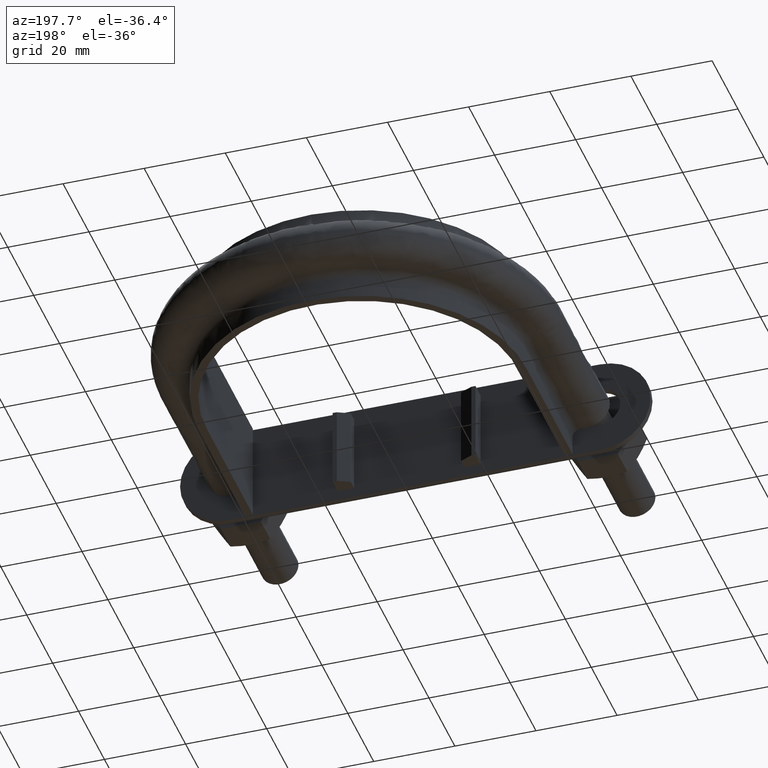
[diagram: clean part render]
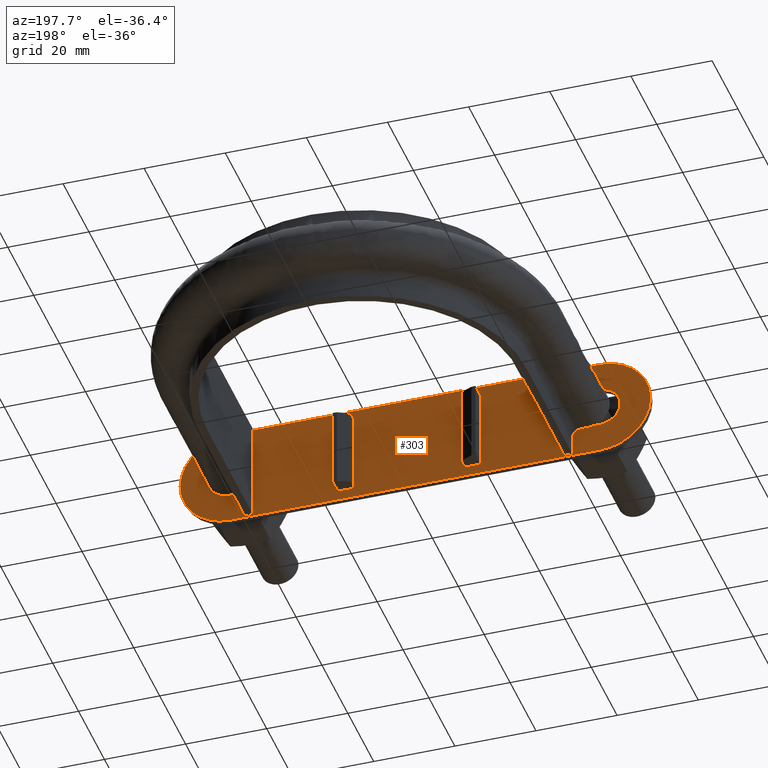
[diagram: same view with one face highlighted and labeled with its STEP entity id]
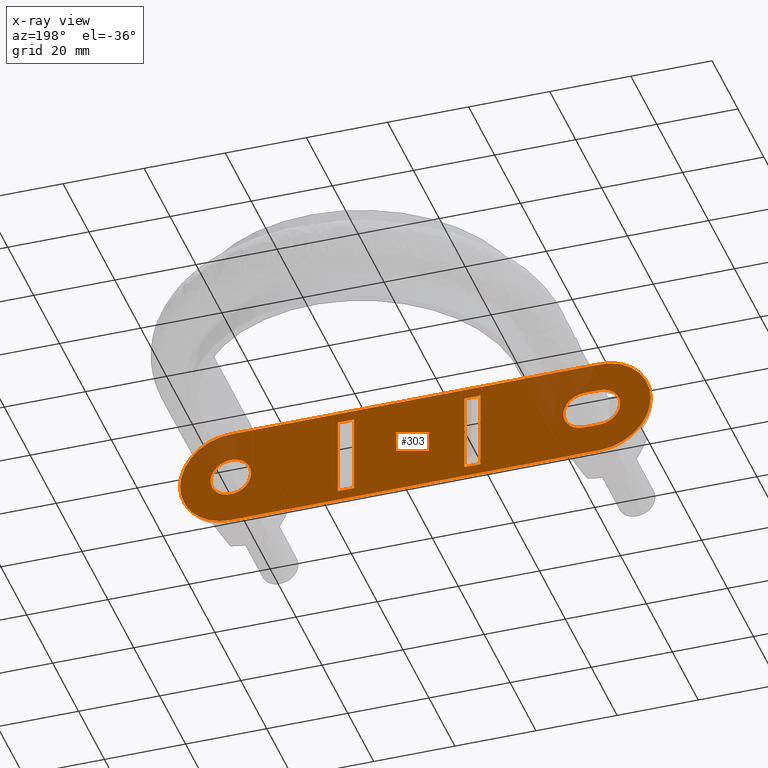
[diagram: x-ray of the same camera — body ghosted, the highlighted face saturated]
A machine part, auxiliary view. The second image highlights one B-rep face of the part: STEP entity #303.
The next image is the same camera in x-ray: the body ghosted, the highlighted face saturated — about 8% of this face is hidden behind the body in this view.
In plain terms, the highlighted planar face has unit normal (-0, 1, 0).
Its self-contained STEP definition (entity closure, byte-faithful):
#303 = ADVANCED_FACE( '', ( #467, #468, #469, #470, #471 ), #472, .T. );
#467 = FACE_BOUND( '', #1549, .T. );
#468 = FACE_BOUND( '', #1550, .T. );
#469 = FACE_BOUND( '', #1551, .T. );
#470 = FACE_OUTER_BOUND( '', #1552, .T. );
#471 = FACE_BOUND( '', #1553, .T. );
#472 = PLANE( '', #1554 );
#1549 = EDGE_LOOP( '', ( #1969, #1970, #1971, #1972 ) );
#1550 = EDGE_LOOP( '', ( #1973, #1974, #1975, #1976 ) );
#1551 = EDGE_LOOP( '', ( #1977 ) );
#1552 = EDGE_LOOP( '', ( #1978, #1979, #1980, #1981, #1982, #1983 ) );
#1553 = EDGE_LOOP( '', ( #1984, #1985, #1986, #1987 ) );
#1554 = AXIS2_PLACEMENT_3D( '', #1988, #1989, #1990 );
#1969 = ORIENTED_EDGE( '', *, *, #2625, .F. );
#1970 = ORIENTED_EDGE( '', *, *, #2626, .T. );
#1971 = ORIENTED_EDGE( '', *, *, #2627, .T. );
#1972 = ORIENTED_EDGE( '', *, *, #2628, .F. );
#1973 = ORIENTED_EDGE( '', *, *, #2629, .F. );
#1974 = ORIENTED_EDGE( '', *, *, #2622, .F. );
#1975 = ORIENTED_EDGE( '', *, *, #2630, .F. );
#1976 = ORIENTED_EDGE( '', *, *, #2631, .F. );
#1977 = ORIENTED_EDGE( '', *, *, #2632, .F. );
#1978 = ORIENTED_EDGE( '', *, *, #2612, .T. );
#1979 = ORIENTED_EDGE( '', *, *, #2633, .T. );
#1980 = ORIENTED_EDGE( '', *, *, #2634, .T. );
#1981 = ORIENTED_EDGE( '', *, *, #2635, .T. );
#1982 = ORIENTED_EDGE( '', *, *, #2636, .T. );
#1983 = ORIENTED_EDGE( '', *, *, #2637, .T. );
#1984 = ORIENTED_EDGE( '', *, *, #2638, .F. );
#1985 = ORIENTED_EDGE( '', *, *, #2639, .T. );
#1986 = ORIENTED_EDGE( '', *, *, #2640, .T. );
#1987 = ORIENTED_EDGE( '', *, *, #2641, .F. );
#1988 = CARTESIAN_POINT( '', ( -46.9999999999999, 37.8999999191478, 5.76473164547631E-014 ) );
#1989 = DIRECTION( '', ( -1.72026053130029E-009, 1.00000000000000, 2.28351284177706E-016 ) );
#1990 = DIRECTION( '', ( 2.52274493421808E-016, -2.28351283743728E-016, 1.00000000000000 ) );
#2612 = EDGE_CURVE( '', #2901, #2902, #2903, .T. );
#2622 = EDGE_CURVE( '', #2917, #2918, #2919, .T. );
#2625 = EDGE_CURVE( '', #2922, #2923, #2924, .T. );
#2626 = EDGE_CURVE( '', #2922, #2925, #2926, .T. );
#2627 = EDGE_CURVE( '', #2925, #2927, #2928, .T. );
#2628 = EDGE_CURVE( '', #2923, #2927, #2929, .T. );
#2629 = EDGE_CURVE( '', #2918, #2930, #2931, .F. );
#2630 = EDGE_CURVE( '', #2932, #2917, #2933, .F. );
#2631 = EDGE_CURVE( '', #2930, #2932, #2934, .T. );
#2632 = EDGE_CURVE( '', #2935, #2935, #2936, .T. );
#2633 = EDGE_CURVE( '', #2902, #2937, #2938, .T. );
#2634 = EDGE_CURVE( '', #2937, #2939, #2940, .T. );
#2635 = EDGE_CURVE( '', #2939, #2941, #2942, .T. );
#2636 = EDGE_CURVE( '', #2941, #2943, #2944, .T. );
#2637 = EDGE_CURVE( '', #2943, #2901, #2945, .T. );
#2638 = EDGE_CURVE( '', #2946, #2947, #2948, .T. );
#2639 = EDGE_CURVE( '', #2946, #2949, #2950, .T. );
#2640 = EDGE_CURVE( '', #2949, #2951, #2952, .T. );
#2641 = EDGE_CURVE( '', #2947, #2951, #2953, .T. );
#2901 = VERTEX_POINT( '', #3566 );
#2902 = VERTEX_POINT( '', #3567 );
#2903 = CIRCLE( '', #3568, 12.5000000000000 );
#2917 = VERTEX_POINT( '', #3591 );
#2918 = VERTEX_POINT( '', #3592 );
#2919 = LINE( '', #3593, #3594 );
#2922 = VERTEX_POINT( '', #3599 );
#2923 = VERTEX_POINT( '', #3600 );
#2924 = LINE( '', #3601, #3602 );
#2925 = VERTEX_POINT( '', #3603 );
#2926 = LINE( '', #3604, #3605 );
#2927 = VERTEX_POINT( '', #3606 );
#2928 = LINE( '', #3607, #3608 );
#2929 = LINE( '', #3609, #3610 );
#2930 = VERTEX_POINT( '', #3611 );
#2931 = CIRCLE( '', #3612, 4.99999999999999 );
#2932 = VERTEX_POINT( '', #3613 );
#2933 = CIRCLE( '', #3614, 4.99999999999999 );
#2934 = LINE( '', #3615, #3616 );
#2935 = VERTEX_POINT( '', #3617 );
#2936 = CIRCLE( '', #3618, 4.99999999999998 );
#2937 = VERTEX_POINT( '', #3619 );
#2938 = LINE( '', #3620, #3621 );
#2939 = VERTEX_POINT( '', #3622 );
#2940 = CIRCLE( '', #3623, 12.4999999999996 );
#2941 = VERTEX_POINT( '', #3624 );
#2942 = CIRCLE( '', #3625, 12.5000000000000 );
#2943 = VERTEX_POINT( '', #3626 );
#2944 = LINE( '', #3627, #3628 );
#2945 = CIRCLE( '', #3629, 12.4999999999996 );
#2946 = VERTEX_POINT( '', #3630 );
#2947 = VERTEX_POINT( '', #3631 );
#2948 = LINE( '', #3632, #3633 );
#2949 = VERTEX_POINT( '', #3634 );
#2950 = LINE( '', #3635, #3636 );
#2951 = VERTEX_POINT( '', #3637 );
#2952 = LINE( '', #3638, #3639 );
#2953 = LINE( '', #3640, #3641 );
#3566 = CARTESIAN_POINT( '', ( -59.4999999999998, 37.8999998976445, 5.73313006656719E-014 ) );
#3567 = CARTESIAN_POINT( '', ( -46.9999999999998, 37.8999999191477, 12.4999999999997 ) );
#3568 = AXIS2_PLACEMENT_3D( '', #4179, #4180, #4181 );
#3591 = CARTESIAN_POINT( '', ( -42.9999999999999, 37.8999999260288, -4.99999999999978 ) );
#3592 = CARTESIAN_POINT( '', ( -46.9999999999998, 37.8999999191478, -4.99999999999978 ) );
#3593 = CARTESIAN_POINT( '', ( -46.9999999999998, 37.8999999191478, -4.99999999999978 ) );
#3594 = VECTOR( '', #4191, 1000.00000000002 );
#3599 = CARTESIAN_POINT( '', ( 13.6000000000000, 37.9000000233955, -9.99999999999964 ) );
#3600 = CARTESIAN_POINT( '', ( 13.6000000000000, 37.9000000233955, 9.99999999999972 ) );
#3601 = CARTESIAN_POINT( '', ( 13.6000000000000, 37.9000000233955, -9.99999999999964 ) );
#3602 = VECTOR( '', #4194, 999.999999999989 );
#3603 = CARTESIAN_POINT( '', ( 17.6000000000000, 37.9000000302766, -9.99999999999964 ) );
#3604 = CARTESIAN_POINT( '', ( 13.6000000000000, 37.9000000233955, -9.99999999999964 ) );
#3605 = VECTOR( '', #4195, 1000.00000000002 );
#3606 = CARTESIAN_POINT( '', ( 17.6000000000000, 37.9000000302766, 9.99999999999972 ) );
#3607 = CARTESIAN_POINT( '', ( 17.6000000000000, 37.9000000302766, -9.99999999999964 ) );
#3608 = VECTOR( '', #4196, 999.999999999989 );
#3609 = CARTESIAN_POINT( '', ( 13.6000000000000, 37.9000000233955, 9.99999999999972 ) );
#3610 = VECTOR( '', #4197, 1000.00000000002 );
#3611 = CARTESIAN_POINT( '', ( -46.9999999999998, 37.8999999191478, 4.99999999999990 ) );
#3612 = AXIS2_PLACEMENT_3D( '', #4198, #4199, #4200 );
#3613 = CARTESIAN_POINT( '', ( -42.9999999999999, 37.8999999260288, 4.99999999999990 ) );
#3614 = AXIS2_PLACEMENT_3D( '', #4201, #4202, #4203 );
#3615 = CARTESIAN_POINT( '', ( -42.9999999999999, 37.8999999260288, 4.99999999999990 ) );
#3616 = VECTOR( '', #4204, 1000.00000000002 );
#3617 = CARTESIAN_POINT( '', ( 48.9999999999999, 37.9000100842928, 3.51636908834702E-014 ) );
#3618 = AXIS2_PLACEMENT_3D( '', #4205, #4206, #4207 );
#3619 = CARTESIAN_POINT( '', ( 44.0000000000000, 37.9000000756915, 12.4999999999996 ) );
#3620 = CARTESIAN_POINT( '', ( -46.9999999999998, 37.8999999191477, 12.4999999999997 ) );
#3621 = VECTOR( '', #4208, 1000.00000000002 );
#3622 = CARTESIAN_POINT( '', ( 56.4999999999999, 37.9000000971947, 3.15369064262633E-014 ) );
#3623 = AXIS2_PLACEMENT_3D( '', #4209, #4210, #4211 );
#3624 = CARTESIAN_POINT( '', ( 44.0000000000000, 37.9000000756915, -12.4999999999996 ) );
#3625 = AXIS2_PLACEMENT_3D( '', #4212, #4213, #4214 );
#3626 = CARTESIAN_POINT( '', ( -46.9999999999998, 37.8999999191478, -12.4999999999995 ) );
#3627 = CARTESIAN_POINT( '', ( 44.0000000000000, 37.9000000756915, -12.4999999999996 ) );
#3628 = VECTOR( '', #4215, 1000.00000000002 );
#3629 = AXIS2_PLACEMENT_3D( '', #4216, #4217, #4218 );
#3630 = CARTESIAN_POINT( '', ( -17.5999999999999, 37.8999999697234, -9.99999999999963 ) );
#3631 = CARTESIAN_POINT( '', ( -17.5999999999999, 37.8999999697234, 9.99999999999973 ) );
#3632 = CARTESIAN_POINT( '', ( -17.5999999999999, 37.8999999697234, -9.99999999999963 ) );
#3633 = VECTOR( '', #4219, 999.999999999989 );
#3634 = CARTESIAN_POINT( '', ( -13.5999999999999, 37.8999999766045, -9.99999999999963 ) );
#3635 = CARTESIAN_POINT( '', ( -17.5999999999999, 37.8999999697234, -9.99999999999963 ) );
#3636 = VECTOR( '', #4220, 1000.00000000002 );
#3637 = CARTESIAN_POINT( '', ( -13.5999999999999, 37.8999999766044, 9.99999999999973 ) );
#3638 = CARTESIAN_POINT( '', ( -13.5999999999999, 37.8999999766044, -9.99999999999963 ) );
#3639 = VECTOR( '', #4221, 999.999999999989 );
#3640 = CARTESIAN_POINT( '', ( -17.5999999999999, 37.8999999697234, 9.99999999999973 ) );
#3641 = VECTOR( '', #4222, 1000.00000000002 );
#4179 = CARTESIAN_POINT( '', ( -46.9999999999999, 37.8999999191478, 5.76473164547631E-014 ) );
#4180 = DIRECTION( '', ( -1.72026053130029E-009, 1.00000000000000, 2.28351284177706E-016 ) );
#4181 = DIRECTION( '', ( -1.00000000000000, -1.72026053130029E-009, 1.13496614950844E-016 ) );
#4191 = DIRECTION( '', ( -1.00000000000000, -1.72026053130029E-009, 2.52274493028984E-016 ) );
#4194 = DIRECTION( '', ( 9.00152945732425E-017, 8.35414941775825E-017, 1.00000000000000 ) );
#4195 = DIRECTION( '', ( 1.00000000000000, 1.72026053130029E-009, -2.52274493028984E-016 ) );
#4196 = DIRECTION( '', ( 9.00152945732425E-017, 8.35414941775825E-017, 1.00000000000000 ) );
#4197 = DIRECTION( '', ( 1.00000000000000, 1.72026053130029E-009, -2.52274493028984E-016 ) );
#4198 = CARTESIAN_POINT( '', ( -46.9999999999998, 37.8999999191478, 5.93820399307398E-014 ) );
#4199 = DIRECTION( '', ( 1.72026053130029E-009, -1.00000000000000, -2.28351284177706E-016 ) );
#4200 = DIRECTION( '', ( -1.00000000000000, -1.72026053130029E-009, 2.52274493028984E-016 ) );
#4201 = CARTESIAN_POINT( '', ( -42.9999999999999, 37.8999999260288, 5.83729419586239E-014 ) );
#4202 = DIRECTION( '', ( 1.72026053130029E-009, -1.00000000000000, -2.28351284177706E-016 ) );
#4203 = DIRECTION( '', ( -1.00000000000000, -1.72026053130029E-009, 2.52274493028984E-016 ) );
#4204 = DIRECTION( '', ( 1.00000000000000, 1.72026053130029E-009, -2.52274493028984E-016 ) );
#4205 = CARTESIAN_POINT( '', ( 43.9999999999999, 37.9000100756915, 3.64250633486152E-014 ) );
#4206 = DIRECTION( '', ( -1.72026053130029E-009, 1.00000000000000, 2.28351284177706E-016 ) );
#4207 = DIRECTION( '', ( 1.00000000000000, 1.72026053130029E-009, -2.52274493028984E-016 ) );
#4208 = DIRECTION( '', ( 1.00000000000000, 1.72026053130029E-009, -2.52274493028984E-016 ) );
#4209 = CARTESIAN_POINT( '', ( 44.0000000000000, 37.9000000756915, 3.46903375891256E-014 ) );
#4210 = DIRECTION( '', ( -1.72026053130029E-009, 1.00000000000000, 2.28351284177706E-016 ) );
#4211 = DIRECTION( '', ( 2.52274493421808E-016, -2.28351283743728E-016, 1.00000000000000 ) );
#4212 = CARTESIAN_POINT( '', ( 44.0000000000000, 37.9000000756915, 3.81597845410791E-014 ) );
#4213 = DIRECTION( '', ( -1.72026053130029E-009, 1.00000000000000, 2.28351284177706E-016 ) );
#4214 = DIRECTION( '', ( 1.00000000000000, 1.72026053130029E-009, -1.13496614950844E-016 ) );
#4215 = DIRECTION( '', ( -1.00000000000000, -1.72026053130029E-009, 2.52274493028984E-016 ) );
#4216 = CARTESIAN_POINT( '', ( -46.9999999999999, 37.8999999191478, 6.11167634067166E-014 ) );
#4217 = DIRECTION( '', ( -1.72026053130029E-009, 1.00000000000000, 2.28351284177706E-016 ) );
#4218 = DIRECTION( '', ( 3.02837018890787E-016, 2.28351284698665E-016, -1.00000000000000 ) );
#4219 = DIRECTION( '', ( 9.00152945732425E-017, 8.35414941775825E-017, 1.00000000000000 ) );
#4220 = DIRECTION( '', ( 1.00000000000000, 1.72026053130029E-009, -2.52274493028984E-016 ) );
#4221 = DIRECTION( '', ( 9.00152945732425E-017, 8.35414941775825E-017, 1.00000000000000 ) );
#4222 = DIRECTION( '', ( 1.00000000000000, 1.72026053130029E-009, -2.52274493028984E-016 ) );